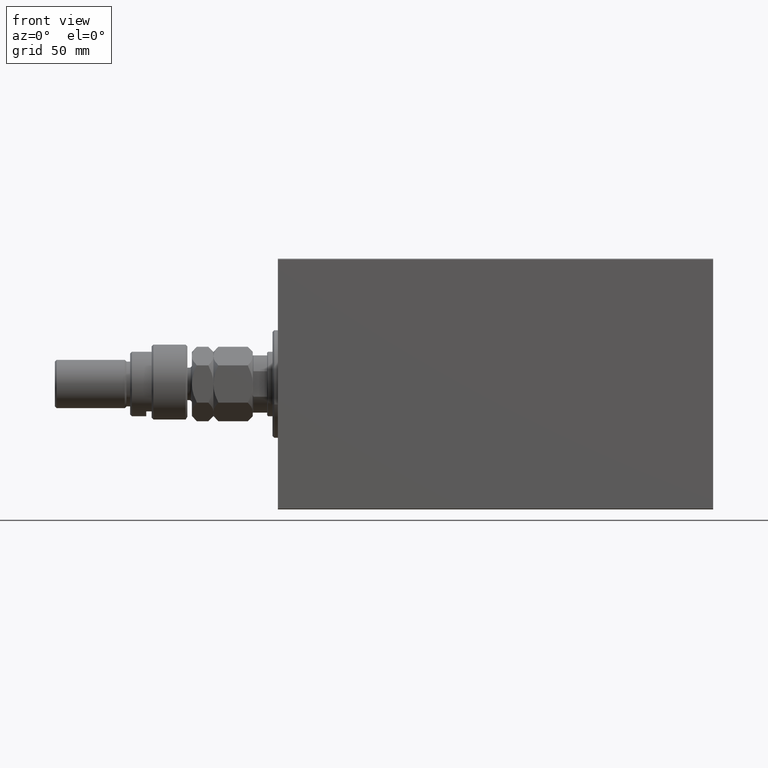
[diagram: clean part render]
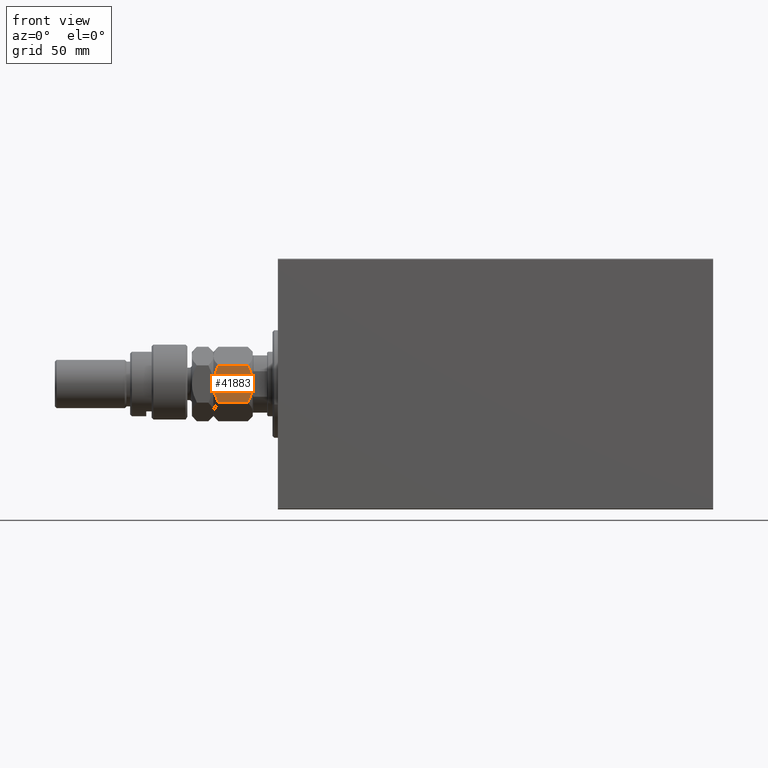
[diagram: same view with one face highlighted and labeled with its STEP entity id]
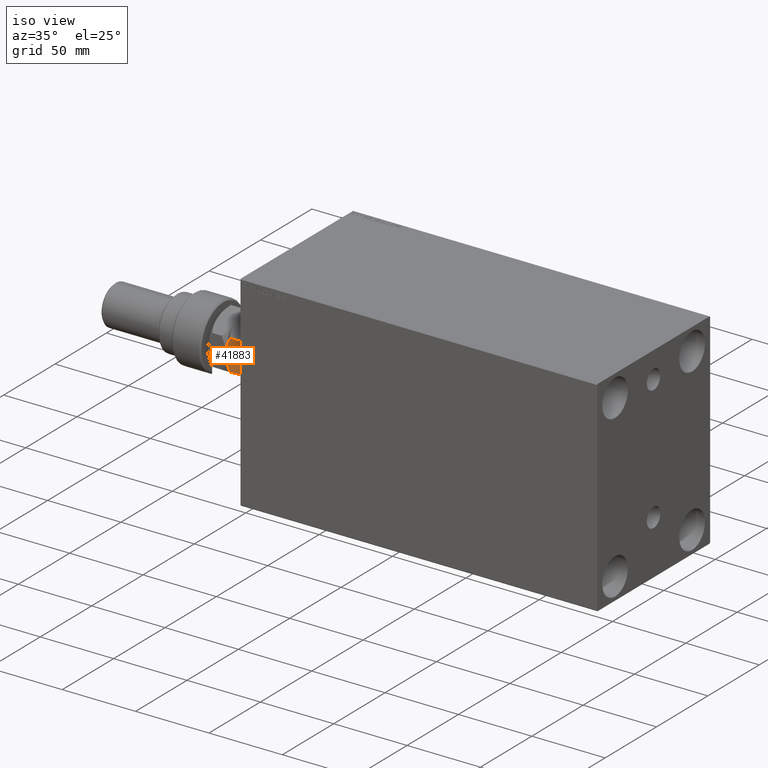
[diagram: same view with one face highlighted and labeled with its STEP entity id]
A machine part, front view. The second image highlights one B-rep face of the part: STEP entity #41883.
A second angle (iso view) of the same face is appended — the face is thin or edge-on in the first view.
In plain terms, the highlighted planar face has unit normal (0, 1, -0).
Its self-contained STEP definition (entity closure, byte-faithful):
#673 = VERTEX_POINT ( 'NONE', #7253 ) ;
#1121 = CARTESIAN_POINT ( 'NONE',  ( 16.58866960374795596, -11.20713682960488988, 1.969777706634904035 ) ) ;
#1923 = CARTESIAN_POINT ( 'NONE',  ( 8.999999999999994671, -15.58845726811989607, 0.000000000000000000 ) ) ;
#2193 = CARTESIAN_POINT ( 'NONE',  ( 15.13928418966203004, -12.04393988858690356, 20.72742529849574922 ) ) ;
#2429 = CARTESIAN_POINT ( 'NONE',  ( 10.56546083169953043, -14.68463803553235358, 21.99999999999998934 ) ) ;
#2830 = AXIS2_PLACEMENT_3D ( 'NONE', #46344, #28167, #21564 ) ;
#2869 = CARTESIAN_POINT ( 'NONE',  ( 8.605874323383760682, -15.81600583360882162, 21.99999999999999289 ) ) ;
#4378 = CARTESIAN_POINT ( 'NONE',  ( 18.00000000000000000, -10.39230484541326760, 2.784609690826518769 ) ) ;
#5150 = CARTESIAN_POINT ( 'NONE',  ( 9.790461530629871234, -15.13208409062669801, 0.01733285647409176997 ) ) ;
#5647 = EDGE_LOOP ( 'NONE', ( #11146, #42785, #9607, #23612, #20702, #35037 ) ) ;
#5942 = EDGE_CURVE ( 'NONE', #673, #39460, #22127, .T. ) ;
#7102 = CARTESIAN_POINT ( 'NONE',  ( 8.999999999999992895, -15.58845726811989252, 22.00000000000000000 ) ) ;
#7253 = CARTESIAN_POINT ( 'NONE',  ( 8.999999999999992895, -15.58845726811989252, 22.00000000000000000 ) ) ;
#8371 = CARTESIAN_POINT ( 'NONE',  ( -5.711424626294094742E-16, -20.78460969082652454, 2.784609690826514772 ) ) ;
#8718 = CARTESIAN_POINT ( 'NONE',  ( 18.00000000000000000, -10.39230484541326760, 22.00000000000000000 ) ) ;
#9066 = LINE ( 'NONE', #37862, #29724 ) ;
#9607 = ORIENTED_EDGE ( 'NONE', *, *, #5942, .F. ) ;
#10656 = CARTESIAN_POINT ( 'NONE',  ( 5.858009779716796039, -17.40248616759157230, 21.65943689774472602 ) ) ;
#11146 = ORIENTED_EDGE ( 'NONE', *, *, #32396, .F. ) ;
#11374 = VERTEX_POINT ( 'NONE', #8371 ) ;
#11853 = CARTESIAN_POINT ( 'NONE',  ( 2.860715810337961074, -19.13297464765287614, 1.272574701504241457 ) ) ;
#12085 = CARTESIAN_POINT ( 'NONE',  ( 1.409696000463984467, -19.97072132548310108, 1.970721325483046238 ) ) ;
#12306 = EDGE_CURVE ( 'NONE', #39460, #21757, #37976, .T. ) ;
#12556 = CARTESIAN_POINT ( 'NONE',  ( -6.333703707815436362E-16, -20.78460969082652454, 19.21539030917348256 ) ) ;
#13728 = CARTESIAN_POINT ( 'NONE',  ( -6.333703707815436362E-16, -20.78460969082652454, 19.21539030917348256 ) ) ;
#13765 = CARTESIAN_POINT ( 'NONE',  ( 12.10430252359947545, -13.79618737047370658, 21.72360409287842131 ) ) ;
#14194 = CARTESIAN_POINT ( 'NONE',  ( 2.854601888853810721, -19.13650452186756823, 20.72261692211012374 ) ) ;
#14428 = CARTESIAN_POINT ( 'NONE',  ( 5.097327296964719423, -17.84166640377631552, 21.46291444417098049 ) ) ;
#16229 = CARTESIAN_POINT ( 'NONE',  ( 10.58425150785354063, -14.67378923359658671, 0.08694689011815642798 ) ) ;
#16824 = CARTESIAN_POINT ( 'NONE',  ( 16.59030399953601531, -11.20619321075668928, 20.02927867451694510 ) ) ;
#17361 = CARTESIAN_POINT ( 'NONE',  ( 18.00000000000000000, -10.39230484541326760, 19.21539030917347901 ) ) ;
#17737 = EDGE_CURVE ( 'NONE', #27207, #11374, #25866, .T. ) ;
#17770 = FACE_OUTER_BOUND ( 'NONE', #5647, .T. ) ;
#18301 = B_SPLINE_CURVE_WITH_KNOTS ( 'NONE', 3,
 ( #13728, #46531, #14194, #14428, #10656, #25046, #35195, #39454, #2869, #7102 ),
 .UNSPECIFIED., .F., .F.,
 ( 4, 2, 2, 2, 4 ),
 ( 2.544307986817554504E-07, 0.005386537354063071666, 0.008079678815695268135, 0.009426249546511363334, 0.01077282027732746027 ),
 .UNSPECIFIED. ) ;
#19157 = CARTESIAN_POINT ( 'NONE',  ( 5.895697476400517445, -17.38072716576608912, 0.2763959071215842944 ) ) ;
#20004 = CARTESIAN_POINT ( 'NONE',  ( 8.999999999999994671, -15.58845726811989607, 0.000000000000000000 ) ) ;
#20093 = CARTESIAN_POINT ( 'NONE',  ( 7.434539168300455358, -16.49227650070744033, 3.567702773835112239E-15 ) ) ;
#20702 = ORIENTED_EDGE ( 'NONE', *, *, #27377, .T. ) ;
#21564 = DIRECTION ( 'NONE',  ( -0.8660254037844388186, -0.4999999999999997224, 0.000000000000000000 ) ) ;
#21757 = VERTEX_POINT ( 'NONE', #4378 ) ;
#22127 = B_SPLINE_CURVE_WITH_KNOTS ( 'NONE', 3,
 ( #34760, #2429, #13765, #2193, #16824, #41405 ),
 .UNSPECIFIED., .F., .F.,
 ( 4, 2, 4 ),
 ( 0.01077282027732746027, 0.01612137750481873119, 0.02146993473231000038 ),
 .UNSPECIFIED. ) ;
#23558 = CARTESIAN_POINT ( 'NONE',  ( 18.00000000000000000, -10.39230484541326760, 2.784609690826518769 ) ) ;
#23612 = ORIENTED_EDGE ( 'NONE', *, *, #41038, .F. ) ;
#25046 = CARTESIAN_POINT ( 'NONE',  ( 7.023280245922040699, -16.72971695024925154, 21.86127740090141458 ) ) ;
#25866 = B_SPLINE_CURVE_WITH_KNOTS ( 'NONE', 3,
 ( #1923, #20093, #19157, #11853, #12085, #30010 ),
 .UNSPECIFIED., .F., .F.,
 ( 4, 2, 4 ),
 ( 0.01077282027732747241, 0.01612137750481873466, 0.02146993473230999691 ),
 .UNSPECIFIED. ) ;
#27085 = CARTESIAN_POINT ( 'NONE',  ( 12.14199022028319597, -13.77442836864822340, 0.3405631022552691456 ) ) ;
#27207 = VERTEX_POINT ( 'NONE', #32044 ) ;
#27377 = EDGE_CURVE ( 'NONE', #37715, #11374, #9066, .T. ) ;
#28167 = DIRECTION ( 'NONE',  ( -0.4999999999999997224, 0.8660254037844388186, 0.000000000000000000 ) ) ;
#28979 = B_SPLINE_CURVE_WITH_KNOTS ( 'NONE', 3,
 ( #23558, #1121, #36376, #41278, #27085, #37946, #16229, #5150, #30167, #20004 ),
 .UNSPECIFIED., .F., .F.,
 ( 4, 2, 2, 2, 4 ),
 ( 2.544307986804616605E-07, 0.005386537354063076002, 0.008079678815695275074, 0.009426249546511373742, 0.01077282027732747241 ),
 .UNSPECIFIED. ) ;
#29724 = VECTOR ( 'NONE', #30304, 1000.000000000000000 ) ;
#30010 = CARTESIAN_POINT ( 'NONE',  ( -5.711424626294094742E-16, -20.78460969082652454, 2.784609690826514772 ) ) ;
#30167 = CARTESIAN_POINT ( 'NONE',  ( 9.394125676616228660, -15.36090870263097585, 3.470293984900869278E-15 ) ) ;
#30304 = DIRECTION ( 'NONE',  ( -0.000000000000000000, -0.000000000000000000, -1.000000000000000000 ) ) ;
#32044 = CARTESIAN_POINT ( 'NONE',  ( 8.999999999999994671, -15.58845726811989607, 0.000000000000000000 ) ) ;
#32396 = EDGE_CURVE ( 'NONE', #21757, #27207, #28979, .T. ) ;
#34760 = CARTESIAN_POINT ( 'NONE',  ( 8.999999999999992895, -15.58845726811989252, 22.00000000000000000 ) ) ;
#35037 = ORIENTED_EDGE ( 'NONE', *, *, #17737, .F. ) ;
#35195 = CARTESIAN_POINT ( 'NONE',  ( 7.415748492146448712, -16.50312530264321254, 21.91305310988184374 ) ) ;
#36376 = CARTESIAN_POINT ( 'NONE',  ( 15.14539811114618928, -12.04041001437223102, 1.277383077889873153 ) ) ;
#37715 = VERTEX_POINT ( 'NONE', #12556 ) ;
#37862 = CARTESIAN_POINT ( 'NONE',  ( -8.673617379884035472E-16, -20.78460969082652454, 22.00000000000000000 ) ) ;
#37946 = CARTESIAN_POINT ( 'NONE',  ( 10.97671975407794953, -14.44719758599054593, 0.1387225990985770097 ) ) ;
#37976 = LINE ( 'NONE', #8718, #39259 ) ;
#39259 = VECTOR ( 'NONE', #41076, 1000.000000000000000 ) ;
#39454 = CARTESIAN_POINT ( 'NONE',  ( 8.209538469370121661, -16.04483044561310479, 21.98266714352591222 ) ) ;
#39460 = VERTEX_POINT ( 'NONE', #17361 ) ;
#39499 = PLANE ( 'NONE',  #2830 ) ;
#41038 = EDGE_CURVE ( 'NONE', #37715, #673, #18301, .T. ) ;
#41076 = DIRECTION ( 'NONE',  ( -0.000000000000000000, -0.000000000000000000, -1.000000000000000000 ) ) ;
#41278 = CARTESIAN_POINT ( 'NONE',  ( 12.90267270303526814, -13.33524813246347662, 0.5370855558290119625 ) ) ;
#41405 = CARTESIAN_POINT ( 'NONE',  ( 18.00000000000000000, -10.39230484541326760, 19.21539030917347901 ) ) ;
#41883 = ADVANCED_FACE ( 'NONE', ( #17770 ), #39499, .F. ) ;
#42785 = ORIENTED_EDGE ( 'NONE', *, *, #12306, .F. ) ;
#46344 = CARTESIAN_POINT ( 'NONE',  ( -8.673617379884035472E-16, -20.78460969082652454, 22.00000000000000000 ) ) ;
#46531 = CARTESIAN_POINT ( 'NONE',  ( 1.411330396252046038, -19.96977770663490404, 20.03022229336509952 ) ) ;